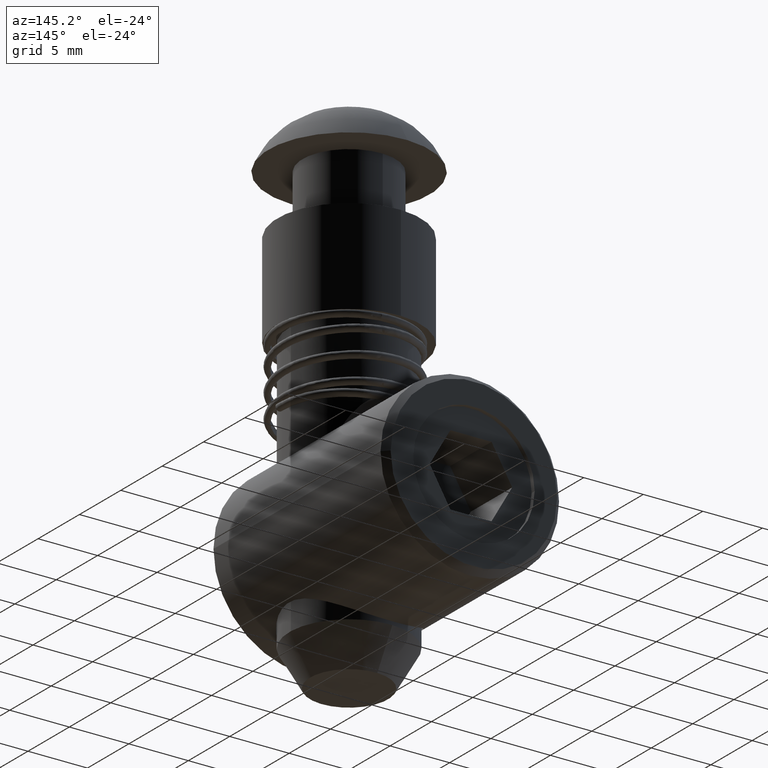
[diagram: clean part render]
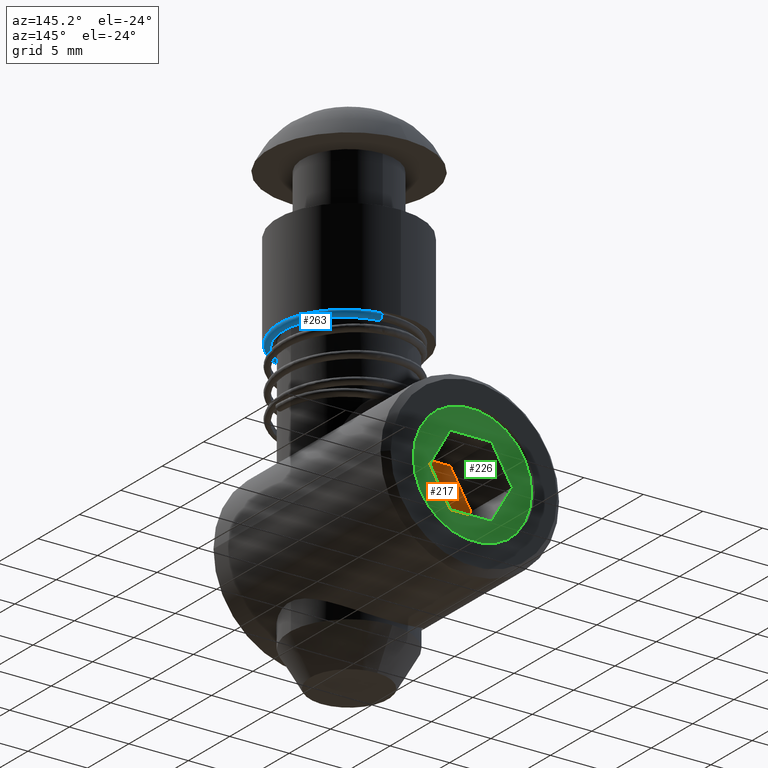
[diagram: same view with three faces highlighted in distinct colors, each labeled with its STEP entity id]
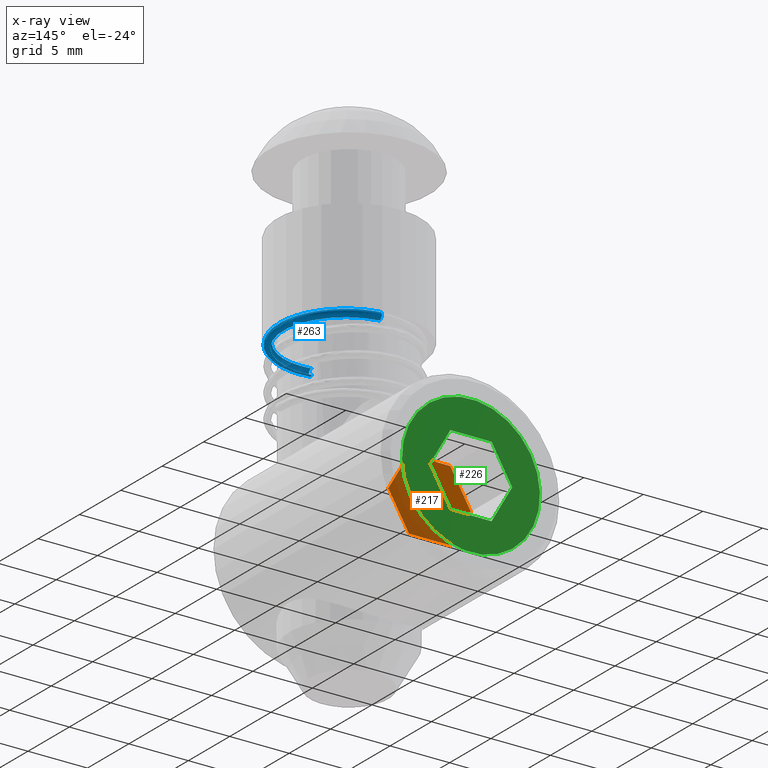
[diagram: x-ray of the same camera — body ghosted, the three highlighted faces saturated]
A machine part, auxiliary view with three faces highlighted in distinct colors.
The next image is the same camera in x-ray (body ghosted, the three faces saturated) — at least one of them is partly hidden behind the body in this view.
Their STEP definitions:

[orange] entity #217 — the highlighted planar face has unit normal (0, 1, 0).
#217 = ADVANCED_FACE ( 'NONE', ( #3256 ), #2247, .T. ) ;
#270 = VERTEX_POINT ( 'NONE', #1076 ) ;
#352 = AXIS2_PLACEMENT_3D ( 'NONE', #2248, #2249, #2250 ) ;
#1076 = CARTESIAN_POINT ( 'NONE',  ( 3.000000000000000000, -1.732050807750000300, 5.000000000000000900 ) ) ;
#1242 = CARTESIAN_POINT ( 'NONE',  ( -3.000000000000000000, 1.732050807875000500, 5.000000000000000900 ) ) ;
#1426 = CARTESIAN_POINT ( 'NONE',  ( -3.000000000000000000, 0.0000000000000000000, 5.000000000000000000 ) ) ;
#1427 = DIRECTION ( 'NONE',  ( 0.0000000000000000000, 1.000000000000000000, 0.0000000000000000000 ) ) ;
#1428 = CARTESIAN_POINT ( 'NONE',  ( -1.500000000000000000, 2.598076211500000000, 5.000000000000000000 ) ) ;
#1429 = DIRECTION ( 'NONE',  ( 0.8660254038555483800, 0.4999999998768344700, -0.0000000000000000000 ) ) ;
#1430 = CARTESIAN_POINT ( 'NONE',  ( 1.500000000000000000, 2.598076211500000000, 5.000000000000000000 ) ) ;
#1431 = DIRECTION ( 'NONE',  ( 0.8660254038555483800, -0.4999999998768344700, -0.0000000000000000000 ) ) ;
#1432 = CARTESIAN_POINT ( 'NONE',  ( 3.000000000000000000, 0.0000000000000000000, 5.000000000000000000 ) ) ;
#1433 = DIRECTION ( 'NONE',  ( -0.0000000000000000000, -1.000000000000000000, -0.0000000000000000000 ) ) ;
#1434 = CARTESIAN_POINT ( 'NONE',  ( 1.500000000000000000, -2.598076211500000000, 5.000000000000000000 ) ) ;
#1435 = DIRECTION ( 'NONE',  ( -0.8660254038555483800, -0.4999999998768344700, -0.0000000000000000000 ) ) ;
#1436 = CARTESIAN_POINT ( 'NONE',  ( -1.500000000000000000, -2.598076211500000000, 5.000000000000000000 ) ) ;
#1437 = DIRECTION ( 'NONE',  ( -0.8660254038555483800, 0.4999999998768344700, -0.0000000000000000000 ) ) ;
#2069 = CARTESIAN_POINT ( 'NONE',  ( 8.385255922775669600E-010, 3.464101614515877200, 5.000000000000000900 ) ) ;
#2071 = CARTESIAN_POINT ( 'NONE',  ( -3.000000000000000000, -1.732050807875000300, 5.000000000000000900 ) ) ;
#2072 = CARTESIAN_POINT ( 'NONE',  ( 8.385254838573497100E-010, -3.464101614515877200, 5.000000000000000900 ) ) ;
#2073 = CARTESIAN_POINT ( 'NONE',  ( 3.000000000000000000, 1.732050807875000500, 5.000000000000000900 ) ) ;
#2247 = PLANE ( 'NONE',  #352 ) ;
#2248 = CARTESIAN_POINT ( 'NONE',  ( 3.000000000000000000, -3.464101615000000600, 5.000000000000000000 ) ) ;
#2249 = DIRECTION ( 'NONE',  ( 0.0000000000000000000, 0.0000000000000000000, -1.000000000000000000 ) ) ;
#2250 = DIRECTION ( 'NONE',  ( -1.000000000000000000, 0.0000000000000000000, 0.0000000000000000000 ) ) ;
#2697 = VERTEX_POINT ( 'NONE', #1242 ) ;
#2904 = EDGE_CURVE ( 'NONE', #3536, #2697, #3408, .T. ) ;
#2905 = EDGE_CURVE ( 'NONE', #2697, #3534, #3410, .T. ) ;
#2906 = EDGE_CURVE ( 'NONE', #3534, #3538, #3412, .T. ) ;
#2907 = EDGE_CURVE ( 'NONE', #3538, #270, #3413, .T. ) ;
#2908 = EDGE_CURVE ( 'NONE', #270, #3537, #3416, .T. ) ;
#2909 = EDGE_CURVE ( 'NONE', #3537, #3536, #3417, .T. ) ;
#3107 = EDGE_LOOP ( 'NONE', ( #3187, #3183, #3226, #3232, #3233, #3236 ) ) ;
#3183 = ORIENTED_EDGE ( 'NONE', *, *, #2905, .T. ) ;
#3187 = ORIENTED_EDGE ( 'NONE', *, *, #2904, .T. ) ;
#3226 = ORIENTED_EDGE ( 'NONE', *, *, #2906, .T. ) ;
#3232 = ORIENTED_EDGE ( 'NONE', *, *, #2907, .T. ) ;
#3233 = ORIENTED_EDGE ( 'NONE', *, *, #2908, .T. ) ;
#3236 = ORIENTED_EDGE ( 'NONE', *, *, #2909, .T. ) ;
#3256 = FACE_OUTER_BOUND ( 'NONE', #3107, .T. ) ;
#3408 = LINE ( 'NONE', #1426, #3409 ) ;
#3409 = VECTOR ( 'NONE', #1427, 1000.000000000000000 ) ;
#3410 = LINE ( 'NONE', #1428, #3411 ) ;
#3411 = VECTOR ( 'NONE', #1429, 1000.000000000000100 ) ;
#3412 = LINE ( 'NONE', #1430, #3414 ) ;
#3413 = LINE ( 'NONE', #1432, #3415 ) ;
#3414 = VECTOR ( 'NONE', #1431, 1000.000000000000100 ) ;
#3415 = VECTOR ( 'NONE', #1433, 1000.000000000000000 ) ;
#3416 = LINE ( 'NONE', #1434, #3418 ) ;
#3417 = LINE ( 'NONE', #1436, #3419 ) ;
#3418 = VECTOR ( 'NONE', #1435, 1000.000000000000100 ) ;
#3419 = VECTOR ( 'NONE', #1437, 1000.000000000000100 ) ;
#3534 = VERTEX_POINT ( 'NONE', #2069 ) ;
#3536 = VERTEX_POINT ( 'NONE', #2071 ) ;
#3537 = VERTEX_POINT ( 'NONE', #2072 ) ;
#3538 = VERTEX_POINT ( 'NONE', #2073 ) ;

[blue] entity #263 — the highlighted face is a freeform B-spline surface patch.
#263 = ADVANCED_FACE ( 'NONE', ( #3348 ), #3302, .T. ) ;
#428 = AXIS2_PLACEMENT_3D ( 'NONE', #1636, #1637, #1638 ) ;
#1046 = CARTESIAN_POINT ( 'NONE',  ( -5.176979167999999900, 0.0000000000000000000, -0.2467735430000000400 ) ) ;
#1047 = CARTESIAN_POINT ( 'NONE',  ( -5.176979167999999900, 10.35395833600000200, -0.2467735430000000400 ) ) ;
#1048 = CARTESIAN_POINT ( 'NONE',  ( 5.176979167999999900, 10.35395833600000200, -0.2467735430000000400 ) ) ;
#1049 = CARTESIAN_POINT ( 'NONE',  ( 5.176979167999999900, 0.0000000000000000000, -0.2467735430000000400 ) ) ;
#1050 = CARTESIAN_POINT ( 'NONE',  ( -5.437153189000001800, 0.0000000000000000000, -0.4266328270000000500 ) ) ;
#1051 = CARTESIAN_POINT ( 'NONE',  ( -5.437153189000000000, 10.87430637800000000, -0.4266328270000001000 ) ) ;
#1052 = CARTESIAN_POINT ( 'NONE',  ( 5.437153189000000000, 10.87430637800000000, -0.4266328270000001000 ) ) ;
#1053 = CARTESIAN_POINT ( 'NONE',  ( 5.437153189000001800, 0.0000000000000000000, -0.4266328270000000500 ) ) ;
#1054 = CARTESIAN_POINT ( 'NONE',  ( -5.702030014999999200, 0.0000000000000000000, -0.2537740680000000700 ) ) ;
#1055 = CARTESIAN_POINT ( 'NONE',  ( -5.702030015000000100, 11.40406003000000000, -0.2537740680000000200 ) ) ;
#1056 = CARTESIAN_POINT ( 'NONE',  ( 5.702030015000000100, 11.40406003000000000, -0.2537740680000000200 ) ) ;
#1057 = CARTESIAN_POINT ( 'NONE',  ( 5.702030014999999200, 0.0000000000000000000, -0.2537740680000000700 ) ) ;
#1058 = CARTESIAN_POINT ( 'NONE',  ( -5.642149159999999800, 0.0000000000000000000, 0.05679664200000001500 ) ) ;
#1059 = CARTESIAN_POINT ( 'NONE',  ( -5.642149159999999800, 11.28429831900000100, 0.05679664200000000800 ) ) ;
#1060 = CARTESIAN_POINT ( 'NONE',  ( 5.642149159999999800, 11.28429831900000100, 0.05679664200000000800 ) ) ;
#1061 = CARTESIAN_POINT ( 'NONE',  ( 5.642149159999999800, 0.0000000000000000000, 0.05679664200000001500 ) ) ;
#1062 = CARTESIAN_POINT ( 'NONE',  ( -5.582268304000002100, 0.0000000000000000000, 0.3673673530000001200 ) ) ;
#1063 = CARTESIAN_POINT ( 'NONE',  ( -5.582268304000002100, 11.16453660800000400, 0.3673673530000000600 ) ) ;
#1064 = CARTESIAN_POINT ( 'NONE',  ( 5.582268304000002100, 11.16453660800000400, 0.3673673530000000600 ) ) ;
#1065 = CARTESIAN_POINT ( 'NONE',  ( 5.582268304000002100, 0.0000000000000000000, 0.3673673530000001200 ) ) ;
#1066 = CARTESIAN_POINT ( 'NONE',  ( -5.272111087999999900, 0.0000000000000000000, 0.4293543220000000700 ) ) ;
#1067 = CARTESIAN_POINT ( 'NONE',  ( -5.272111088000001700, 10.54422217499999800, 0.4293543220000001800 ) ) ;
#1068 = CARTESIAN_POINT ( 'NONE',  ( 5.272111088000001700, 10.54422217499999800, 0.4293543220000001800 ) ) ;
#1069 = CARTESIAN_POINT ( 'NONE',  ( 5.272111087999999900, 0.0000000000000000000, 0.4293543220000000700 ) ) ;
#1070 = CARTESIAN_POINT ( 'NONE',  ( -5.097458889999999500, 0.0000000000000000000, 0.1656565910000000200 ) ) ;
#1071 = CARTESIAN_POINT ( 'NONE',  ( -5.097458889999999500, 10.19491777999999900, 0.1656565910000000200 ) ) ;
#1072 = CARTESIAN_POINT ( 'NONE',  ( 5.097458889999999500, 10.19491777999999900, 0.1656565910000000200 ) ) ;
#1073 = CARTESIAN_POINT ( 'NONE',  ( 5.097458889999999500, 0.0000000000000000000, 0.1656565910000000200 ) ) ;
#1636 = CARTESIAN_POINT ( 'NONE',  ( 0.0000000000000000000, 0.0000000000000000000, -0.2467735429999996000 ) ) ;
#1637 = DIRECTION ( 'NONE',  ( -0.0000000000000000000, -0.0000000000000000000, -1.000000000000000000 ) ) ;
#1638 = DIRECTION ( 'NONE',  ( 1.000000000000000000, 0.0000000000000000000, -8.377102841650874700E-017 ) ) ;
#1652 = CARTESIAN_POINT ( 'NONE',  ( 5.349393663221014200, 0.0000000000000000000, -0.2999971408168931000 ) ) ;
#1653 = CARTESIAN_POINT ( 'NONE',  ( 5.283937845687882300, 0.0000000000000000000, -0.3002596892967311900 ) ) ;
#1654 = CARTESIAN_POINT ( 'NONE',  ( 5.225275545014681300, 0.0000000000000000000, -0.2801610109580501300 ) ) ;
#1655 = CARTESIAN_POINT ( 'NONE',  ( 5.176979168000547000, -1.584993269399888900E-016, -0.2459263485055726600 ) ) ;
#1656 = CARTESIAN_POINT ( 'NONE',  ( -5.176979167999999900, -1.061816176709246500E-009, -0.2467735429999998200 ) ) ;
#1657 = CARTESIAN_POINT ( 'NONE',  ( -5.437153189000001800, 0.0000000000000000000, -0.4266328270000000500 ) ) ;
#1658 = CARTESIAN_POINT ( 'NONE',  ( -5.702030015000000100, 0.0000000000000000000, -0.2537740680000000700 ) ) ;
#1659 = CARTESIAN_POINT ( 'NONE',  ( -5.642149159999999800, 0.0000000000000000000, 0.05679664200000001500 ) ) ;
#1660 = CARTESIAN_POINT ( 'NONE',  ( -5.582268304000002100, 0.0000000000000000000, 0.3673673530000001200 ) ) ;
#1661 = CARTESIAN_POINT ( 'NONE',  ( -5.272111087999999900, 0.0000000000000000000, 0.4293543219999999500 ) ) ;
#1662 = CARTESIAN_POINT ( 'NONE',  ( -5.097458889999999500, -4.398116419668252100E-010, 0.1656565910000000200 ) ) ;
#1663 = CARTESIAN_POINT ( 'NONE',  ( -5.097458889999999500, -4.398116419668252100E-010, 0.1656565910000000200 ) ) ;
#1664 = CARTESIAN_POINT ( 'NONE',  ( -5.097458889999999500, 10.19491777999999700, 0.1656565910000000200 ) ) ;
#1665 = CARTESIAN_POINT ( 'NONE',  ( 5.097458889999999500, 10.19491777999999700, 0.1656565910000000200 ) ) ;
#1666 = CARTESIAN_POINT ( 'NONE',  ( 5.098671563962983400, -7.330190944074103100E-010, 0.1656565915197637000 ) ) ;
#1667 = CARTESIAN_POINT ( 'NONE',  ( 5.098671563962983400, -7.330190944074103100E-010, 0.1656565915197637000 ) ) ;
#1668 = CARTESIAN_POINT ( 'NONE',  ( 5.150754542639066200, 0.0000000000000000000, 0.2461247605050057300 ) ) ;
#1669 = CARTESIAN_POINT ( 'NONE',  ( 5.239288371748459700, 0.0000000000000000000, 0.3006648498207981100 ) ) ;
#1670 = CARTESIAN_POINT ( 'NONE',  ( 5.349700585447819500, 0.0000000000000000000, 0.2999968265113534500 ) ) ;
#1671 = CARTESIAN_POINT ( 'NONE',  ( 5.349700585447819500, 0.0000000000000000000, 0.2999968265113534500 ) ) ;
#1672 = CARTESIAN_POINT ( 'NONE',  ( 5.509627953542642200, 0.0000000000000000000, 0.2986996840085938700 ) ) ;
#1673 = CARTESIAN_POINT ( 'NONE',  ( 5.615948573360139300, 0.0000000000000000000, 0.1926853945148008500 ) ) ;
#1674 = CARTESIAN_POINT ( 'NONE',  ( 5.642149159999999800, 0.0000000000000000000, 0.05679664200000001500 ) ) ;
#1675 = CARTESIAN_POINT ( 'NONE',  ( 5.677993560121880300, 0.0000000000000000000, -0.1291095344461613300 ) ) ;
#1676 = CARTESIAN_POINT ( 'NONE',  ( 5.565021484195494100, 0.0000000000000000000, -0.2982518552555253900 ) ) ;
#1677 = CARTESIAN_POINT ( 'NONE',  ( 5.349393663221013300, 0.0000000000000000000, -0.2999971408168931000 ) ) ;
#1721 = CARTESIAN_POINT ( 'NONE',  ( 0.0000000000000000000, 0.0000000000000000000, -0.2467735429999996000 ) ) ;
#1722 = DIRECTION ( 'NONE',  ( -0.0000000000000000000, -0.0000000000000000000, -1.000000000000000000 ) ) ;
#1723 = DIRECTION ( 'NONE',  ( 1.000000000000000000, 1.776356839400250500E-015, -8.377102841650874700E-017 ) ) ;
#1799 =( BOUNDED_CURVE ( )  B_SPLINE_CURVE ( 3, ( #1671, #1672, #1673, #1674, #1675, #1676, #1677 ),
 .UNSPECIFIED., .F., .F. ) 
 B_SPLINE_CURVE_WITH_KNOTS ( ( 4, 3, 4 ),
 ( 0.0000000000000000000, 0.4427741489962102000, 1.000000000000000000 ),
 .UNSPECIFIED. ) 
 CURVE ( )  GEOMETRIC_REPRESENTATION_ITEM ( )  RATIONAL_B_SPLINE_CURVE ( ( 0.6952452667748805200, 0.6618350196343452100, 0.7634199307093849600, 1.000000000000000000, 0.7022668763750999900, 0.6183379321590012400, 0.7482131673517037300 ) ) 
 REPRESENTATION_ITEM ( '' )  );
#1826 = AXIS2_PLACEMENT_3D ( 'NONE', #1721, #1722, #1723 ) ;
#1992 = CARTESIAN_POINT ( 'NONE',  ( -5.097458889999999500, -4.398116419668252100E-010, 0.1656565910000000200 ) ) ;
#1993 = CARTESIAN_POINT ( 'NONE',  ( 5.176979168000547000, -1.584993269399888900E-016, -0.2459263485055726600 ) ) ;
#1998 = CARTESIAN_POINT ( 'NONE',  ( 5.349393663221015100, 0.0000000000000000000, -0.2999971408168931000 ) ) ;
#2006 = CARTESIAN_POINT ( 'NONE',  ( -5.176979167999999900, -1.061816176709246500E-009, -0.2467735429999998200 ) ) ;
#2011 = CARTESIAN_POINT ( 'NONE',  ( 6.339970967343728000E-016, 5.176979167999999000, -0.2467735429999996000 ) ) ;
#2074 = CARTESIAN_POINT ( 'NONE',  ( 5.349700585447819500, 0.0000000000000000000, 0.2999968265113534500 ) ) ;
#2077 = CARTESIAN_POINT ( 'NONE',  ( 5.098671563962983400, -7.330190944074103100E-010, 0.1656565915197637000 ) ) ;
#2138 = EDGE_LOOP ( 'NONE', ( #2527, #2523, #2518, #2517, #2520, #2647, #2531 ) ) ;
#2260 =( BOUNDED_CURVE ( )  B_SPLINE_CURVE ( 3, ( #1667, #1668, #1669, #1670 ),
 .UNSPECIFIED., .F., .F. ) 
 B_SPLINE_CURVE_WITH_KNOTS ( ( 4, 4 ),
 ( 0.0000000000000000000, 1.000000000000000000 ),
 .UNSPECIFIED. ) 
 CURVE ( )  GEOMETRIC_REPRESENTATION_ITEM ( )  RATIONAL_B_SPLINE_CURVE ( ( 1.000000000000000000, 0.8222824236951008500, 0.7207416335903171800, 0.6953776296856490900 ) ) 
 REPRESENTATION_ITEM ( '' )  );
#2517 = ORIENTED_EDGE ( 'NONE', *, *, #2950, .T. ) ;
#2518 = ORIENTED_EDGE ( 'NONE', *, *, #2966, .F. ) ;
#2520 = ORIENTED_EDGE ( 'NONE', *, *, #2951, .T. ) ;
#2523 = ORIENTED_EDGE ( 'NONE', *, *, #2945, .F. ) ;
#2527 = ORIENTED_EDGE ( 'NONE', *, *, #2949, .T. ) ;
#2531 = ORIENTED_EDGE ( 'NONE', *, *, #2953, .T. ) ;
#2647 = ORIENTED_EDGE ( 'NONE', *, *, #2952, .T. ) ;
#2734 = CIRCLE ( 'NONE', #1826, 5.176979167999999900 ) ;
#2767 = CIRCLE ( 'NONE', #428, 5.176979167999999900 ) ;
#2945 = EDGE_CURVE ( 'NONE', #3462, #3444, #2767, .T. ) ;
#2949 = EDGE_CURVE ( 'NONE', #3449, #3444, #3491, .T. ) ;
#2950 = EDGE_CURVE ( 'NONE', #3457, #3443, #3493, .T. ) ;
#2951 = EDGE_CURVE ( 'NONE', #3443, #3542, #3492, .T. ) ;
#2952 = EDGE_CURVE ( 'NONE', #3542, #3539, #2260, .T. ) ;
#2953 = EDGE_CURVE ( 'NONE', #3539, #3449, #1799, .T. ) ;
#2966 = EDGE_CURVE ( 'NONE', #3457, #3462, #2734, .T. ) ;
#3302 =( BOUNDED_SURFACE ( )  B_SPLINE_SURFACE ( 3, 3, ( 
 ( #1046, #1047, #1048, #1049 ),
 ( #1050, #1051, #1052, #1053 ),
 ( #1054, #1055, #1056, #1057 ),
 ( #1058, #1059, #1060, #1061 ),
 ( #1062, #1063, #1064, #1065 ),
 ( #1066, #1067, #1068, #1069 ),
 ( #1070, #1071, #1072, #1073 ) ),
 .UNSPECIFIED., .F., .F., .F. ) 
 B_SPLINE_SURFACE_WITH_KNOTS ( ( 4, 3, 4 ),
 ( 4, 4 ),
 ( 0.0000000000000000000, 0.5000000000000000000, 1.000000000000000000 ),
 ( 0.0000000000000000000, 1.000000000000000000 ),
 .UNSPECIFIED. ) 
 GEOMETRIC_REPRESENTATION_ITEM ( )  RATIONAL_B_SPLINE_SURFACE ( (
 ( 1.000000000000000000, 0.3333333333333330400, 0.3333333333333330400, 1.000000000000000000),
 ( 0.5853915805174810800, 0.1951305268391600200, 0.1951305268391600200, 0.5853915805174810800),
 ( 0.5853915805174810800, 0.1951305268391600200, 0.1951305268391600200, 0.5853915805174810800),
 ( 1.000000000000000000, 0.3333333333333330400, 0.3333333333333330400, 1.000000000000000000),
 ( 0.5853915805174810800, 0.1951305268391600200, 0.1951305268391600200, 0.5853915805174810800),
 ( 0.5853915805174810800, 0.1951305268391600200, 0.1951305268391600200, 0.5853915805174810800),
 ( 1.000000000000000000, 0.3333333333333330400, 0.3333333333333330400, 1.000000000000000000) ) ) 
 REPRESENTATION_ITEM ( '' )  SURFACE ( )  );
#3348 = FACE_OUTER_BOUND ( 'NONE', #2138, .T. ) ;
#3443 = VERTEX_POINT ( 'NONE', #1992 ) ;
#3444 = VERTEX_POINT ( 'NONE', #1993 ) ;
#3449 = VERTEX_POINT ( 'NONE', #1998 ) ;
#3457 = VERTEX_POINT ( 'NONE', #2006 ) ;
#3462 = VERTEX_POINT ( 'NONE', #2011 ) ;
#3491 =( BOUNDED_CURVE ( )  B_SPLINE_CURVE ( 3, ( #1652, #1653, #1654, #1655 ),
 .UNSPECIFIED., .F., .F. ) 
 B_SPLINE_CURVE_WITH_KNOTS ( ( 4, 4 ),
 ( 0.0000000000000000000, 1.000000000000000000 ),
 .UNSPECIFIED. ) 
 CURVE ( )  GEOMETRIC_REPRESENTATION_ITEM ( )  RATIONAL_B_SPLINE_CURVE ( ( 0.7491032612160321000, 0.8001700856740083800, 0.8838023319353309800, 1.000000000000000000 ) ) 
 REPRESENTATION_ITEM ( '' )  );
#3492 =( BOUNDED_CURVE ( )  B_SPLINE_CURVE ( 3, ( #1663, #1664, #1665, #1666 ),
 .UNSPECIFIED., .F., .F. ) 
 B_SPLINE_CURVE_WITH_KNOTS ( ( 4, 4 ),
 ( 4.390466202782697000E-013, 0.01610964825555989700 ),
 .UNSPECIFIED. ) 
 CURVE ( )  GEOMETRIC_REPRESENTATION_ITEM ( )  RATIONAL_B_SPLINE_CURVE ( ( 1.000000000000000000, 0.3333333333333330400, 0.3333333333333330400, 1.000000000000000000 ) ) 
 REPRESENTATION_ITEM ( '' )  );
#3493 =( BOUNDED_CURVE ( )  B_SPLINE_CURVE ( 3, ( #1656, #1657, #1658, #1659, #1660, #1661, #1662 ),
 .UNSPECIFIED., .F., .F. ) 
 B_SPLINE_CURVE_WITH_KNOTS ( ( 4, 3, 4 ),
 ( 0.0000000000000000000, 0.5000000000000000000, 1.000000000000000000 ),
 .UNSPECIFIED. ) 
 CURVE ( )  GEOMETRIC_REPRESENTATION_ITEM ( )  RATIONAL_B_SPLINE_CURVE ( ( 1.000000000000000000, 0.5853915805174810800, 0.5853915805174810800, 1.000000000000000000, 0.5853915805174810800, 0.5853915805174810800, 1.000000000000000000 ) ) 
 REPRESENTATION_ITEM ( '' )  );
#3539 = VERTEX_POINT ( 'NONE', #2074 ) ;
#3542 = VERTEX_POINT ( 'NONE', #2077 ) ;

[green] entity #226 — the highlighted planar face has unit normal (0, -1, 0).
#39 = VERTEX_POINT ( 'NONE', #2224 ) ;
#226 = ADVANCED_FACE ( 'NONE', ( #3272, #3273 ), #451, .F. ) ;
#268 = VERTEX_POINT ( 'NONE', #1074 ) ;
#272 = VERTEX_POINT ( 'NONE', #1078 ) ;
#273 = VERTEX_POINT ( 'NONE', #1079 ) ;
#362 = AXIS2_PLACEMENT_3D ( 'NONE', #452, #453, #454 ) ;
#405 = AXIS2_PLACEMENT_3D ( 'NONE', #1375, #1376, #1377 ) ;
#420 = AXIS2_PLACEMENT_3D ( 'NONE', #1468, #1469, #1470 ) ;
#451 = PLANE ( 'NONE',  #362 ) ;
#452 = CARTESIAN_POINT ( 'NONE',  ( -5.869600000000000200, -5.869600000000000200, 0.0000000000000000000 ) ) ;
#453 = DIRECTION ( 'NONE',  ( 0.0000000000000000000, 0.0000000000000000000, 1.000000000000000000 ) ) ;
#454 = DIRECTION ( 'NONE',  ( 1.000000000000000000, 0.0000000000000000000, 0.0000000000000000000 ) ) ;
#1074 = CARTESIAN_POINT ( 'NONE',  ( -2.794368761368482900E-016, -3.464101615000000600, -2.032879073410320200E-017 ) ) ;
#1078 = CARTESIAN_POINT ( 'NONE',  ( -2.999999999053599700, 1.732050808546404800, -1.084202172485504400E-016 ) ) ;
#1079 = CARTESIAN_POINT ( 'NONE',  ( -2.999999999053599700, -1.732050808546404800, -4.065758146820640400E-017 ) ) ;
#1375 = CARTESIAN_POINT ( 'NONE',  ( 0.0000000000000000000, 0.0000000000000000000, 0.0000000000000000000 ) ) ;
#1376 = DIRECTION ( 'NONE',  ( -0.0000000000000000000, 0.0000000000000000000, -1.000000000000000000 ) ) ;
#1377 = DIRECTION ( 'NONE',  ( 1.000000000000000000, 0.0000000000000000000, 0.0000000000000000000 ) ) ;
#1445 = CARTESIAN_POINT ( 'NONE',  ( 0.0000000000000000000, -3.464101615000000600, 0.0000000000000000000 ) ) ;
#1446 = DIRECTION ( 'NONE',  ( -0.8660254038555483800, -0.4999999998768344700, -0.0000000000000000000 ) ) ;
#1449 = CARTESIAN_POINT ( 'NONE',  ( -3.000000000000000000, -1.732050808000000300, -8.131516293641280800E-017 ) ) ;
#1450 = DIRECTION ( 'NONE',  ( -0.8660254038555483800, 0.4999999998768344700, -0.0000000000000000000 ) ) ;
#1453 = CARTESIAN_POINT ( 'NONE',  ( -2.999999998107199000, 0.0000000000000000000, 0.0000000000000000000 ) ) ;
#1454 = DIRECTION ( 'NONE',  ( 0.0000000000000000000, 1.000000000000000000, 0.0000000000000000000 ) ) ;
#1457 = CARTESIAN_POINT ( 'NONE',  ( 0.0000000000000000000, 3.464101615000000600, 0.0000000000000000000 ) ) ;
#1458 = DIRECTION ( 'NONE',  ( 0.8660254038555483800, 0.4999999998768344700, -0.0000000000000000000 ) ) ;
#1461 = CARTESIAN_POINT ( 'NONE',  ( 3.000000000000000000, 1.732050808000000300, -8.131516293641280800E-017 ) ) ;
#1462 = DIRECTION ( 'NONE',  ( 0.8660254038555483800, -0.4999999998768344700, -0.0000000000000000000 ) ) ;
#1463 = CARTESIAN_POINT ( 'NONE',  ( 2.999999998107199900, 0.0000000000000000000, 0.0000000000000000000 ) ) ;
#1464 = DIRECTION ( 'NONE',  ( -0.0000000000000000000, -1.000000000000000000, -0.0000000000000000000 ) ) ;
#1468 = CARTESIAN_POINT ( 'NONE',  ( 0.0000000000000000000, 0.0000000000000000000, 0.0000000000000000000 ) ) ;
#1469 = DIRECTION ( 'NONE',  ( -0.0000000000000000000, 0.0000000000000000000, -1.000000000000000000 ) ) ;
#1470 = DIRECTION ( 'NONE',  ( 1.000000000000000000, 0.0000000000000000000, 0.0000000000000000000 ) ) ;
#2042 = CARTESIAN_POINT ( 'NONE',  ( 5.799999999999999800, 0.0000000000000000000, 0.0000000000000000000 ) ) ;
#2047 = CARTESIAN_POINT ( 'NONE',  ( -5.799999999999999800, 7.225416114969384200E-016, 0.0000000000000000000 ) ) ;
#2065 = CARTESIAN_POINT ( 'NONE',  ( 2.794368761368482900E-016, 3.464101615000000600, -2.032879073410320200E-017 ) ) ;
#2066 = CARTESIAN_POINT ( 'NONE',  ( 2.999999999053600200, -1.732050808546404800, -1.084202172485504400E-016 ) ) ;
#2157 = ORIENTED_EDGE ( 'NONE', *, *, #2921, .F. ) ;
#2158 = ORIENTED_EDGE ( 'NONE', *, *, #2919, .F. ) ;
#2159 = ORIENTED_EDGE ( 'NONE', *, *, #2917, .F. ) ;
#2160 = ORIENTED_EDGE ( 'NONE', *, *, #2915, .F. ) ;
#2161 = ORIENTED_EDGE ( 'NONE', *, *, #2913, .F. ) ;
#2162 = ORIENTED_EDGE ( 'NONE', *, *, #2922, .F. ) ;
#2163 = ORIENTED_EDGE ( 'NONE', *, *, #2924, .T. ) ;
#2164 = ORIENTED_EDGE ( 'NONE', *, *, #2885, .T. ) ;
#2224 = CARTESIAN_POINT ( 'NONE',  ( 2.999999999053600200, 1.732050808546404800, -4.065758146820640400E-017 ) ) ;
#2698 = VECTOR ( 'NONE', #1462, 1000.000000000000100 ) ;
#2699 = LINE ( 'NONE', #1463, #2700 ) ;
#2700 = VECTOR ( 'NONE', #1464, 1000.000000000000000 ) ;
#2703 = CIRCLE ( 'NONE', #420, 5.799999999999999800 ) ;
#2726 = VECTOR ( 'NONE', #1458, 1000.000000000000100 ) ;
#2728 = LINE ( 'NONE', #1453, #2733 ) ;
#2733 = VECTOR ( 'NONE', #1454, 1000.000000000000000 ) ;
#2739 = LINE ( 'NONE', #1457, #2726 ) ;
#2780 = LINE ( 'NONE', #1461, #2698 ) ;
#2885 = EDGE_CURVE ( 'NONE', #3512, #3507, #3384, .T. ) ;
#2913 = EDGE_CURVE ( 'NONE', #3531, #268, #3425, .T. ) ;
#2915 = EDGE_CURVE ( 'NONE', #268, #273, #3429, .T. ) ;
#2917 = EDGE_CURVE ( 'NONE', #273, #272, #2728, .T. ) ;
#2919 = EDGE_CURVE ( 'NONE', #272, #3530, #2739, .T. ) ;
#2921 = EDGE_CURVE ( 'NONE', #3530, #39, #2780, .T. ) ;
#2922 = EDGE_CURVE ( 'NONE', #39, #3531, #2699, .T. ) ;
#2924 = EDGE_CURVE ( 'NONE', #3507, #3512, #2703, .T. ) ;
#3039 = EDGE_LOOP ( 'NONE', ( #2157, #2158, #2159, #2160, #2161, #2162 ) ) ;
#3123 = EDGE_LOOP ( 'NONE', ( #2163, #2164 ) ) ;
#3272 = FACE_BOUND ( 'NONE', #3039, .T. ) ;
#3273 = FACE_OUTER_BOUND ( 'NONE', #3123, .T. ) ;
#3384 = CIRCLE ( 'NONE', #405, 5.799999999999999800 ) ;
#3425 = LINE ( 'NONE', #1445, #3426 ) ;
#3426 = VECTOR ( 'NONE', #1446, 1000.000000000000100 ) ;
#3429 = LINE ( 'NONE', #1449, #3430 ) ;
#3430 = VECTOR ( 'NONE', #1450, 1000.000000000000100 ) ;
#3507 = VERTEX_POINT ( 'NONE', #2042 ) ;
#3512 = VERTEX_POINT ( 'NONE', #2047 ) ;
#3530 = VERTEX_POINT ( 'NONE', #2065 ) ;
#3531 = VERTEX_POINT ( 'NONE', #2066 ) ;